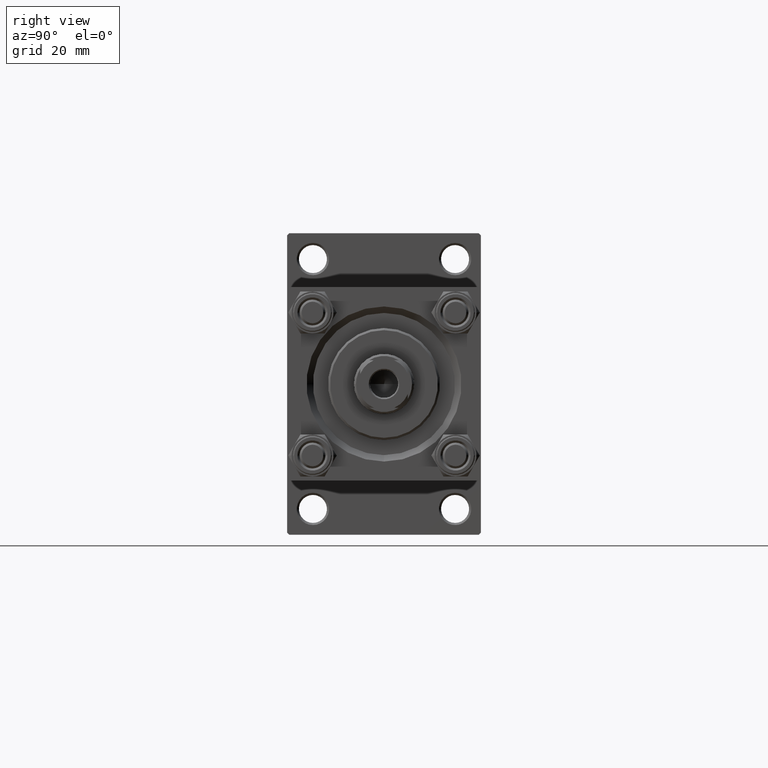
[diagram: clean part render]
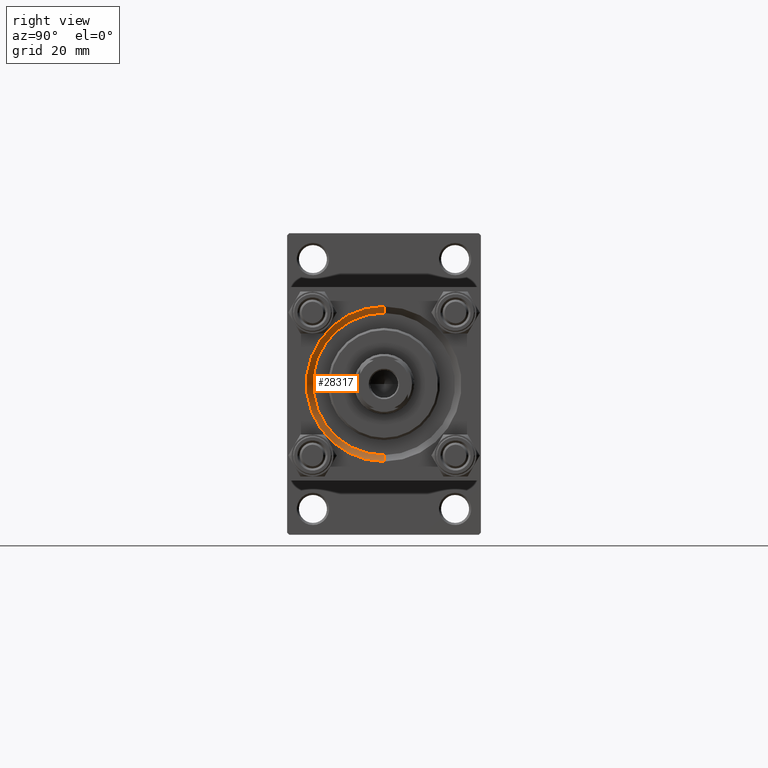
[diagram: same view with one face highlighted and labeled with its STEP entity id]
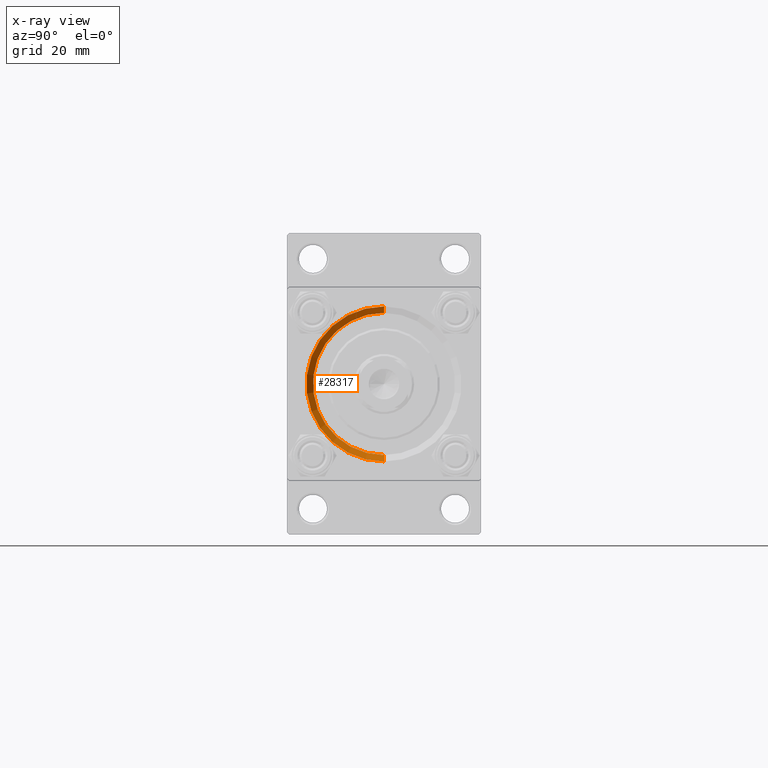
[diagram: x-ray of the same camera — body ghosted, the highlighted face saturated]
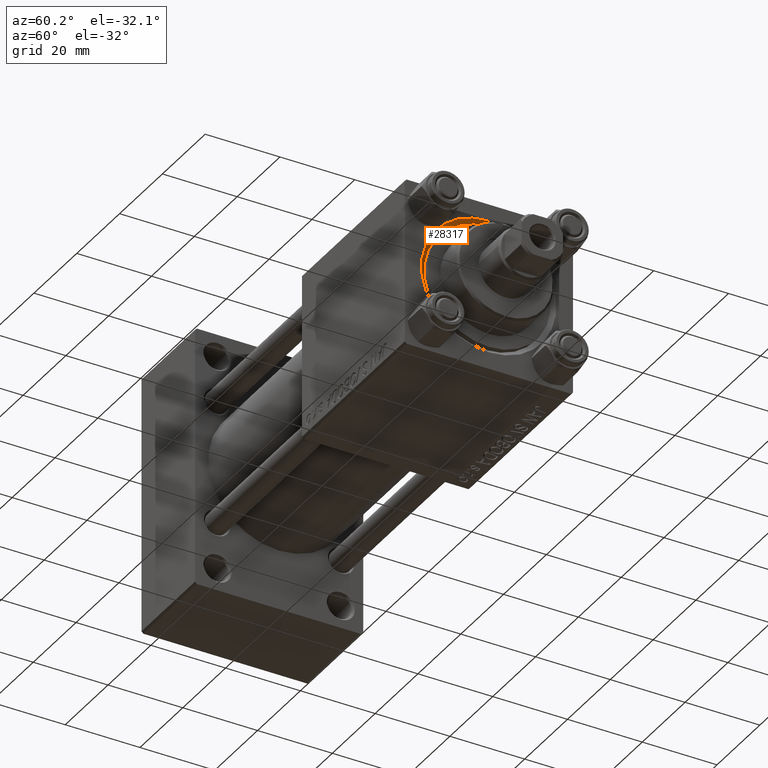
[diagram: same view with one face highlighted and labeled with its STEP entity id]
A machine part, right view. The second image highlights one B-rep face of the part: STEP entity #28317.
The next image is the same camera in x-ray: the body ghosted, the highlighted face saturated — about 0% of this face is hidden behind the body in this view.
A second angle (auxiliary view) of the same face is appended — the face is thin or edge-on in the first view.
In plain terms, the highlighted conical surface has half-angle 45 deg.
Its self-contained STEP definition (entity closure, byte-faithful):
#2376 = CONICAL_SURFACE ( 'NONE', #35528, 16.50000000000000000, 0.7853981633974437271 ) ;
#7222 = CARTESIAN_POINT ( 'NONE',  ( 121.5000000000000000, 2.020667218593133100E-15, 16.50000000000000000 ) ) ;
#7543 = EDGE_CURVE ( 'NONE', #47473, #31075, #24686, .T. ) ;
#7629 = ORIENTED_EDGE ( 'NONE', *, *, #11756, .F. ) ;
#10784 = DIRECTION ( 'NONE',  ( 0.000000000000000000, 0.000000000000000000, 1.000000000000000000 ) ) ;
#11480 = CARTESIAN_POINT ( 'NONE',  ( 121.5000000000000000, 0.000000000000000000, 0.000000000000000000 ) ) ;
#11756 = EDGE_CURVE ( 'NONE', #48501, #47473, #44690, .T. ) ;
#12091 = DIRECTION ( 'NONE',  ( 1.000000000000000000, 0.000000000000000000, 0.000000000000000000 ) ) ;
#14147 = DIRECTION ( 'NONE',  ( 0.7071067811865507924, 8.659560562354892183E-17, 0.7071067811865441310 ) ) ;
#14396 = CARTESIAN_POINT ( 'NONE',  ( 121.5000000000000000, 2.020667218593133100E-15, 16.50000000000000000 ) ) ;
#17189 = ORIENTED_EDGE ( 'NONE', *, *, #46608, .F. ) ;
#18250 = AXIS2_PLACEMENT_3D ( 'NONE', #41376, #26473, #10784 ) ;
#19061 = DIRECTION ( 'NONE',  ( 1.000000000000000000, 0.000000000000000000, 0.000000000000000000 ) ) ;
#19808 = DIRECTION ( 'NONE',  ( 0.000000000000000000, 0.000000000000000000, -1.000000000000000000 ) ) ;
#20487 = AXIS2_PLACEMENT_3D ( 'NONE', #46705, #12091, #27520 ) ;
#21462 = ORIENTED_EDGE ( 'NONE', *, *, #7543, .F. ) ;
#24686 = LINE ( 'NONE', #28490, #27666 ) ;
#26473 = DIRECTION ( 'NONE',  ( -1.000000000000000000, 0.000000000000000000, -0.000000000000000000 ) ) ;
#27150 = CIRCLE ( 'NONE', #18250, 18.00000000000000355 ) ;
#27520 = DIRECTION ( 'NONE',  ( 0.000000000000000000, 0.000000000000000000, 1.000000000000000000 ) ) ;
#27666 = VECTOR ( 'NONE', #36332, 1000.000000000000114 ) ;
#28317 = ADVANCED_FACE ( 'NONE', ( #31711 ), #2376, .F. ) ;
#28490 = CARTESIAN_POINT ( 'NONE',  ( 121.5000000000000000, 0.000000000000000000, -16.50000000000000000 ) ) ;
#28763 = EDGE_CURVE ( 'NONE', #48501, #44870, #29082, .T. ) ;
#29082 = LINE ( 'NONE', #14396, #38719 ) ;
#30023 = CARTESIAN_POINT ( 'NONE',  ( 121.5000000000000000, 0.000000000000000000, -16.50000000000000000 ) ) ;
#31075 = VERTEX_POINT ( 'NONE', #38993 ) ;
#31647 = EDGE_LOOP ( 'NONE', ( #7629, #33991, #17189, #21462 ) ) ;
#31711 = FACE_OUTER_BOUND ( 'NONE', #31647, .T. ) ;
#33991 = ORIENTED_EDGE ( 'NONE', *, *, #28763, .T. ) ;
#35528 = AXIS2_PLACEMENT_3D ( 'NONE', #11480, #19061, #19808 ) ;
#36332 = DIRECTION ( 'NONE',  ( 0.7071067811865507924, 0.000000000000000000, -0.7071067811865441310 ) ) ;
#38719 = VECTOR ( 'NONE', #14147, 1000.000000000000114 ) ;
#38993 = CARTESIAN_POINT ( 'NONE',  ( 123.0000000000000142, 0.000000000000000000, -18.00000000000000355 ) ) ;
#41376 = CARTESIAN_POINT ( 'NONE',  ( 123.0000000000000142, 0.000000000000000000, 0.000000000000000000 ) ) ;
#41672 = CARTESIAN_POINT ( 'NONE',  ( 123.0000000000000142, 2.204364238465235822E-15, 18.00000000000000355 ) ) ;
#44690 = CIRCLE ( 'NONE', #20487, 16.50000000000000000 ) ;
#44870 = VERTEX_POINT ( 'NONE', #41672 ) ;
#46608 = EDGE_CURVE ( 'NONE', #31075, #44870, #27150, .T. ) ;
#46705 = CARTESIAN_POINT ( 'NONE',  ( 121.5000000000000000, 0.000000000000000000, 0.000000000000000000 ) ) ;
#47473 = VERTEX_POINT ( 'NONE', #30023 ) ;
#48501 = VERTEX_POINT ( 'NONE', #7222 ) ;